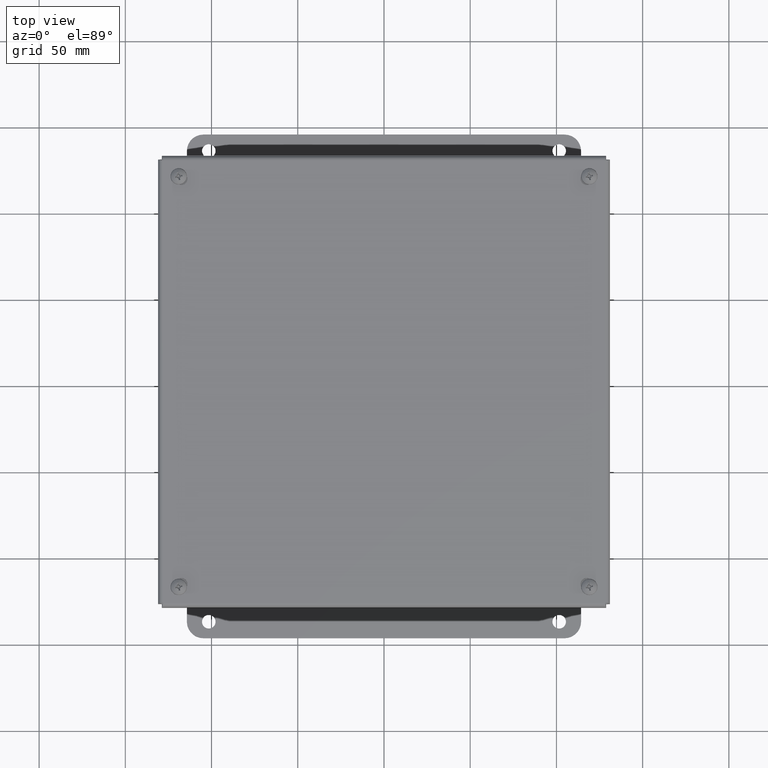
[diagram: clean part render]
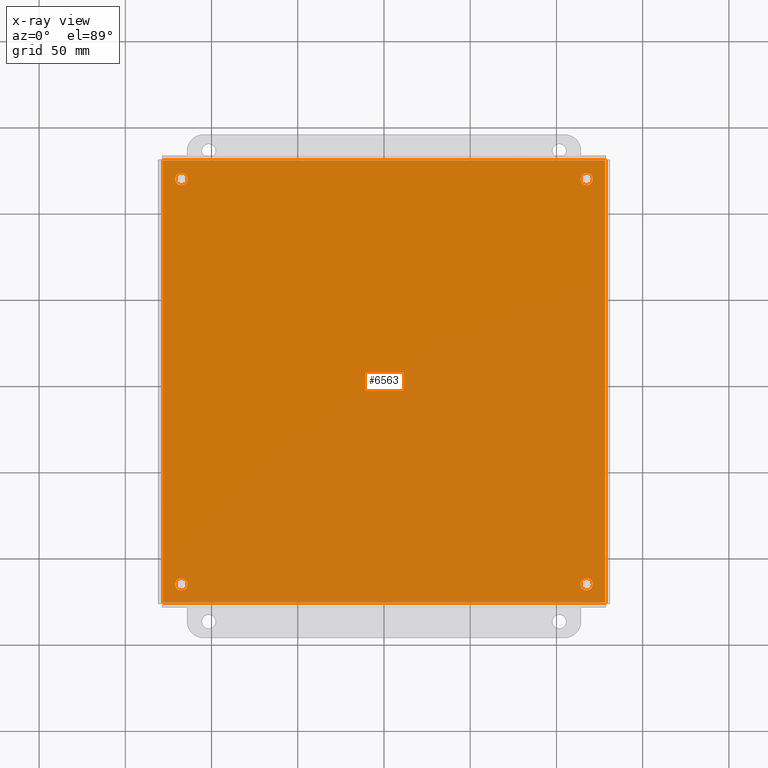
[diagram: x-ray — body ghosted, one internal face saturated and labeled with its STEP entity id]
A machine part, top view, then the same camera in x-ray: the body is ghosted and one INTERNAL B-rep face — a face not visible from any outside direction — is saturated and labeled: STEP entity #6563.
In plain terms, the highlighted planar face has unit normal (0, -0, 1).
Its self-contained STEP definition (entity closure, byte-faithful):
#5325=CARTESIAN_POINT('',(4.485749999999998,-4.626249999999996,0.0));
#5326=VERTEX_POINT('',#5325);
#5327=CARTESIAN_POINT('',(4.626249999999998,-4.626249999999996,0.0));
#5328=DIRECTION('',(0.0,0.0,1.0));
#5329=DIRECTION('',(1.0,0.0,0.0));
#5330=AXIS2_PLACEMENT_3D('',#5327,#5328,#5329);
#5331=CIRCLE('',#5330,0.1405);
#5332=EDGE_CURVE('',#5326,#5326,#5331,.T.);
#5353=CARTESIAN_POINT('',(-4.766749999999999,-4.626249999999996,0.0));
#5354=VERTEX_POINT('',#5353);
#5355=CARTESIAN_POINT('',(-4.626249999999999,-4.626249999999996,0.0));
#5356=DIRECTION('',(0.0,0.0,1.0));
#5357=DIRECTION('',(1.0,0.0,0.0));
#5358=AXIS2_PLACEMENT_3D('',#5355,#5356,#5357);
#5359=CIRCLE('',#5358,0.1405);
#5360=EDGE_CURVE('',#5354,#5354,#5359,.T.);
#5381=CARTESIAN_POINT('',(4.485749999999998,4.626249999999996,0.0));
#5382=VERTEX_POINT('',#5381);
#5383=CARTESIAN_POINT('',(4.626249999999998,4.626249999999996,0.0));
#5384=DIRECTION('',(0.0,0.0,1.0));
#5385=DIRECTION('',(1.0,0.0,0.0));
#5386=AXIS2_PLACEMENT_3D('',#5383,#5384,#5385);
#5387=CIRCLE('',#5386,0.1405);
#5388=EDGE_CURVE('',#5382,#5382,#5387,.T.);
#5409=CARTESIAN_POINT('',(-4.766749999999999,4.626249999999996,0.0));
#5410=VERTEX_POINT('',#5409);
#5411=CARTESIAN_POINT('',(-4.626249999999999,4.626249999999996,0.0));
#5412=DIRECTION('',(0.0,0.0,1.0));
#5413=DIRECTION('',(1.0,0.0,0.0));
#5414=AXIS2_PLACEMENT_3D('',#5411,#5412,#5413);
#5415=CIRCLE('',#5414,0.1405);
#5416=EDGE_CURVE('',#5410,#5410,#5415,.T.);
#5571=CARTESIAN_POINT('',(-5.050999999999999,5.050999999999998,0.0));
#5572=VERTEX_POINT('',#5571);
#5621=CARTESIAN_POINT('',(-5.050999999999998,-5.050999999999999,0.0));
#5622=VERTEX_POINT('',#5621);
#5702=CARTESIAN_POINT('',(-5.050999999999998,-5.050999999999998,0.0));
#5703=DIRECTION('',(0.0,1.0,0.0));
#5704=VECTOR('',#5703,10.101999999999997);
#5705=LINE('',#5702,#5704);
#5706=EDGE_CURVE('',#5622,#5572,#5705,.T.);
#5892=CARTESIAN_POINT('',(5.051000000000002,-5.050999999999998,0.0));
#5893=VERTEX_POINT('',#5892);
#5973=CARTESIAN_POINT('',(5.051000000000002,-5.050999999999998,0.0));
#5974=DIRECTION('',(-1.0,0.0,0.0));
#5975=VECTOR('',#5974,10.101999999999999);
#5976=LINE('',#5973,#5975);
#5977=EDGE_CURVE('',#5893,#5622,#5976,.T.);
#6163=CARTESIAN_POINT('',(5.050999999999998,5.051000000000001,0.0));
#6164=VERTEX_POINT('',#6163);
#6244=CARTESIAN_POINT('',(5.050999999999998,5.051000000000002,0.0));
#6245=DIRECTION('',(0.0,-1.0,0.0));
#6246=VECTOR('',#6245,10.102);
#6247=LINE('',#6244,#6246);
#6248=EDGE_CURVE('',#6164,#5893,#6247,.T.);
#6506=CARTESIAN_POINT('',(-5.051,5.050999999999998,0.0));
#6507=DIRECTION('',(1.0,0.0,0.0));
#6508=VECTOR('',#6507,10.101999999999999);
#6509=LINE('',#6506,#6508);
#6510=EDGE_CURVE('',#5572,#6164,#6509,.T.);
#6540=CARTESIAN_POINT('',(8.741914E-016,-4.927260E-016,0.0));
#6541=DIRECTION('',(0.0,0.0,1.0));
#6542=DIRECTION('',(1.0,0.0,0.0));
#6543=AXIS2_PLACEMENT_3D('',#6540,#6541,#6542);
#6544=PLANE('',#6543);
#6545=ORIENTED_EDGE('',*,*,#5706,.T.);
#6546=ORIENTED_EDGE('',*,*,#6510,.T.);
#6547=ORIENTED_EDGE('',*,*,#6248,.T.);
#6548=ORIENTED_EDGE('',*,*,#5977,.T.);
#6549=EDGE_LOOP('',(#6545,#6546,#6547,#6548));
#6550=FACE_OUTER_BOUND('',#6549,.T.);
#6551=ORIENTED_EDGE('',*,*,#5332,.T.);
#6552=EDGE_LOOP('',(#6551));
#6553=FACE_BOUND('',#6552,.T.);
#6554=ORIENTED_EDGE('',*,*,#5360,.T.);
#6555=EDGE_LOOP('',(#6554));
#6556=FACE_BOUND('',#6555,.T.);
#6557=ORIENTED_EDGE('',*,*,#5388,.T.);
#6558=EDGE_LOOP('',(#6557));
#6559=FACE_BOUND('',#6558,.T.);
#6560=ORIENTED_EDGE('',*,*,#5416,.T.);
#6561=EDGE_LOOP('',(#6560));
#6562=FACE_BOUND('',#6561,.T.);
#6563=ADVANCED_FACE('',(#6550,#6553,#6556,#6559,#6562),#6544,.F.);